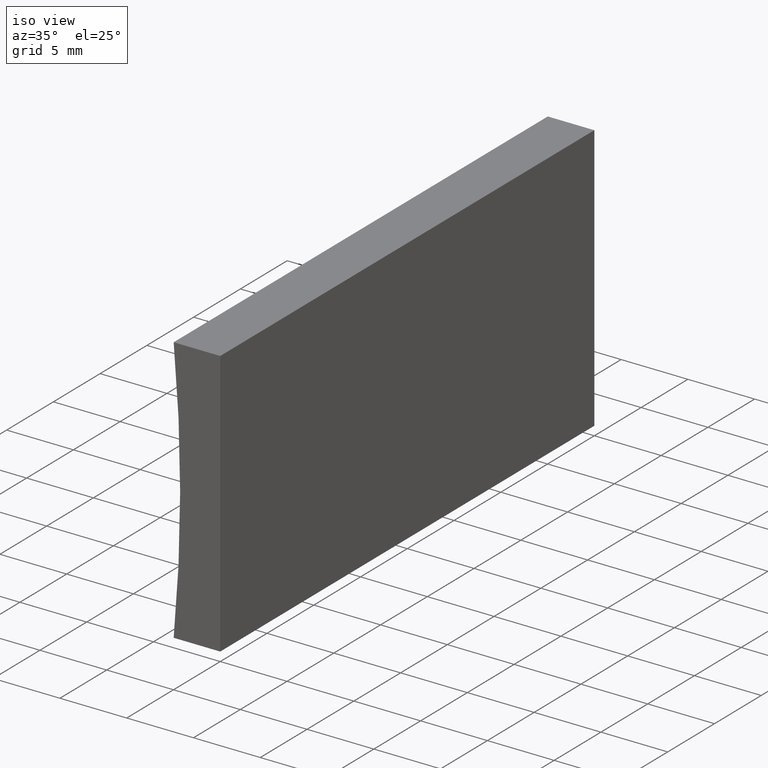
[diagram: clean part render]
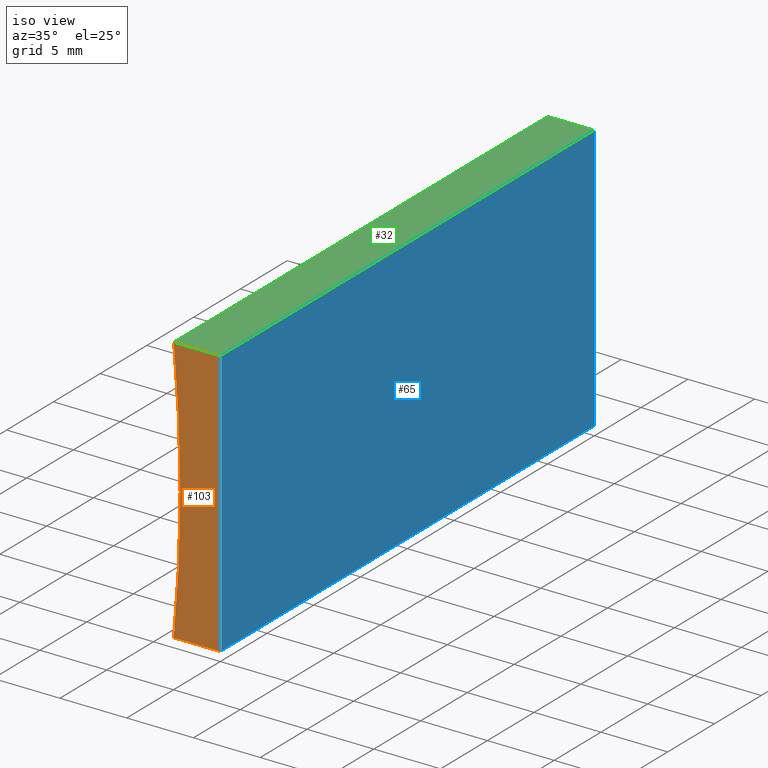
[diagram: same view with three faces highlighted in distinct colors, each labeled with its STEP entity id]
A machine part, iso view with three faces highlighted in distinct colors.
Their STEP definitions:

[orange] entity #103 — the highlighted planar face has unit normal (0, 1, 0).
#7 = VERTEX_POINT ( 'NONE', #56 ) ;
#8 = AXIS2_PLACEMENT_3D ( 'NONE', #128, #198, #110 ) ;
#19 = CIRCLE ( 'NONE', #8, 103.4000000000000200 ) ;
#34 = AXIS2_PLACEMENT_3D ( 'NONE', #134, #153, #162 ) ;
#38 = EDGE_LOOP ( 'NONE', ( #199, #99, #163, #61 ) ) ;
#48 = EDGE_CURVE ( 'NONE', #168, #7, #83, .T. ) ;
#56 = CARTESIAN_POINT ( 'NONE',  ( 1.224646799147353300E-015, 0.0000000000000000000, 20.00000000000000000 ) ) ;
#58 = VECTOR ( 'NONE', #195, 1000.000000000000000 ) ;
#61 = ORIENTED_EDGE ( 'NONE', *, *, #88, .F. ) ;
#69 = CARTESIAN_POINT ( 'NONE',  ( 1.224646799147353300E-015, 0.0000000000000000000, 20.00000000000000000 ) ) ;
#83 = LINE ( 'NONE', #69, #120 ) ;
#88 = EDGE_CURVE ( 'NONE', #97, #168, #19, .T. ) ;
#97 = VERTEX_POINT ( 'NONE', #158 ) ;
#99 = ORIENTED_EDGE ( 'NONE', *, *, #152, .F. ) ;
#103 = ADVANCED_FACE ( 'NONE', ( #150 ), #203, .F. ) ;
#108 = DIRECTION ( 'NONE',  ( -1.000000000000000000, 0.0000000000000000000, -9.956242759457456300E-016 ) ) ;
#110 = DIRECTION ( 'NONE',  ( 0.0000000000000000000, 0.0000000000000000000, 1.000000000000000000 ) ) ;
#114 = VECTOR ( 'NONE', #108, 1000.000000000000000 ) ;
#120 = VECTOR ( 'NONE', #142, 1000.000000000000000 ) ;
#121 = LINE ( 'NONE', #124, #114 ) ;
#124 = CARTESIAN_POINT ( 'NONE',  ( 0.0000000000000000000, 0.0000000000000000000, 0.0000000000000000000 ) ) ;
#125 = EDGE_CURVE ( 'NONE', #140, #97, #121, .T. ) ;
#128 = CARTESIAN_POINT ( 'NONE',  ( -106.4000000000000100, 0.0000000000000000000, 10.00000000000001600 ) ) ;
#129 = LINE ( 'NONE', #166, #58 ) ;
#130 = CARTESIAN_POINT ( 'NONE',  ( 0.0000000000000000000, 0.0000000000000000000, 0.0000000000000000000 ) ) ;
#134 = CARTESIAN_POINT ( 'NONE',  ( -106.4000000000000100, 0.0000000000000000000, 10.00000000000001600 ) ) ;
#140 = VERTEX_POINT ( 'NONE', #130 ) ;
#142 = DIRECTION ( 'NONE',  ( 1.000000000000000000, -0.0000000000000000000, -9.956242759457458300E-016 ) ) ;
#148 = CARTESIAN_POINT ( 'NONE',  ( -3.484695015755795200, 0.0000000000000000000, 20.00000000000000400 ) ) ;
#150 = FACE_OUTER_BOUND ( 'NONE', #38, .T. ) ;
#152 = EDGE_CURVE ( 'NONE', #7, #140, #129, .T. ) ;
#153 = DIRECTION ( 'NONE',  ( 0.0000000000000000000, 1.000000000000000000, 0.0000000000000000000 ) ) ;
#158 = CARTESIAN_POINT ( 'NONE',  ( -3.484695015755795200, 0.0000000000000000000, -1.214306433183765000E-014 ) ) ;
#162 = DIRECTION ( 'NONE',  ( 0.0000000000000000000, -0.0000000000000000000, 1.000000000000000000 ) ) ;
#163 = ORIENTED_EDGE ( 'NONE', *, *, #48, .F. ) ;
#166 = CARTESIAN_POINT ( 'NONE',  ( 0.0000000000000000000, 0.0000000000000000000, 0.0000000000000000000 ) ) ;
#168 = VERTEX_POINT ( 'NONE', #148 ) ;
#195 = DIRECTION ( 'NONE',  ( -6.123233995736766000E-017, -0.0000000000000000000, -1.000000000000000000 ) ) ;
#198 = DIRECTION ( 'NONE',  ( -0.0000000000000000000, -1.000000000000000000, -0.0000000000000000000 ) ) ;
#199 = ORIENTED_EDGE ( 'NONE', *, *, #125, .F. ) ;
#203 = PLANE ( 'NONE',  #34 ) ;

[blue] entity #65 — the highlighted planar face has unit normal (-1, 0, 0).
#7 = VERTEX_POINT ( 'NONE', #56 ) ;
#16 = LINE ( 'NONE', #173, #117 ) ;
#21 = ORIENTED_EDGE ( 'NONE', *, *, #107, .F. ) ;
#31 = DIRECTION ( 'NONE',  ( -6.123233995736766000E-017, -0.0000000000000000000, -1.000000000000000000 ) ) ;
#33 = PLANE ( 'NONE',  #82 ) ;
#42 = ORIENTED_EDGE ( 'NONE', *, *, #111, .T. ) ;
#45 = DIRECTION ( 'NONE',  ( -0.0000000000000000000, -1.000000000000000000, -0.0000000000000000000 ) ) ;
#53 = CARTESIAN_POINT ( 'NONE',  ( 0.0000000000000000000, 40.00000000000000000, 0.0000000000000000000 ) ) ;
#56 = CARTESIAN_POINT ( 'NONE',  ( 1.224646799147353300E-015, 0.0000000000000000000, 20.00000000000000000 ) ) ;
#58 = VECTOR ( 'NONE', #195, 1000.000000000000000 ) ;
#65 = ADVANCED_FACE ( 'NONE', ( #135 ), #33, .F. ) ;
#67 = ORIENTED_EDGE ( 'NONE', *, *, #171, .F. ) ;
#81 = LINE ( 'NONE', #204, #137 ) ;
#82 = AXIS2_PLACEMENT_3D ( 'NONE', #53, #187, #177 ) ;
#93 = CARTESIAN_POINT ( 'NONE',  ( 0.0000000000000000000, 40.00000000000000000, 0.0000000000000000000 ) ) ;
#95 = ORIENTED_EDGE ( 'NONE', *, *, #152, .T. ) ;
#106 = VERTEX_POINT ( 'NONE', #188 ) ;
#107 = EDGE_CURVE ( 'NONE', #122, #140, #16, .T. ) ;
#111 = EDGE_CURVE ( 'NONE', #106, #7, #81, .T. ) ;
#112 = CARTESIAN_POINT ( 'NONE',  ( 0.0000000000000000000, 40.00000000000000000, 0.0000000000000000000 ) ) ;
#117 = VECTOR ( 'NONE', #170, 1000.000000000000000 ) ;
#122 = VERTEX_POINT ( 'NONE', #112 ) ;
#129 = LINE ( 'NONE', #166, #58 ) ;
#130 = CARTESIAN_POINT ( 'NONE',  ( 0.0000000000000000000, 0.0000000000000000000, 0.0000000000000000000 ) ) ;
#135 = FACE_OUTER_BOUND ( 'NONE', #186, .T. ) ;
#137 = VECTOR ( 'NONE', #45, 1000.000000000000000 ) ;
#140 = VERTEX_POINT ( 'NONE', #130 ) ;
#152 = EDGE_CURVE ( 'NONE', #7, #140, #129, .T. ) ;
#160 = VECTOR ( 'NONE', #31, 1000.000000000000000 ) ;
#166 = CARTESIAN_POINT ( 'NONE',  ( 0.0000000000000000000, 0.0000000000000000000, 0.0000000000000000000 ) ) ;
#167 = LINE ( 'NONE', #93, #160 ) ;
#170 = DIRECTION ( 'NONE',  ( -0.0000000000000000000, -1.000000000000000000, -0.0000000000000000000 ) ) ;
#171 = EDGE_CURVE ( 'NONE', #106, #122, #167, .T. ) ;
#173 = CARTESIAN_POINT ( 'NONE',  ( 0.0000000000000000000, 40.00000000000000000, 0.0000000000000000000 ) ) ;
#177 = DIRECTION ( 'NONE',  ( 6.123233995736766000E-017, 0.0000000000000000000, 1.000000000000000000 ) ) ;
#186 = EDGE_LOOP ( 'NONE', ( #95, #21, #67, #42 ) ) ;
#187 = DIRECTION ( 'NONE',  ( -1.000000000000000000, 0.0000000000000000000, 6.123233995736766000E-017 ) ) ;
#188 = CARTESIAN_POINT ( 'NONE',  ( 1.224646799147353300E-015, 40.00000000000000000, 20.00000000000000000 ) ) ;
#195 = DIRECTION ( 'NONE',  ( -6.123233995736766000E-017, -0.0000000000000000000, -1.000000000000000000 ) ) ;
#204 = CARTESIAN_POINT ( 'NONE',  ( 1.224646799147353300E-015, 40.00000000000000000, 20.00000000000000000 ) ) ;

[green] entity #32 — the highlighted planar face has unit normal (-0, 0, -1).
#4 = EDGE_CURVE ( 'NONE', #102, #168, #181, .T. ) ;
#7 = VERTEX_POINT ( 'NONE', #56 ) ;
#26 = DIRECTION ( 'NONE',  ( -0.0000000000000000000, -1.000000000000000000, -0.0000000000000000000 ) ) ;
#29 = CARTESIAN_POINT ( 'NONE',  ( -3.484695015755795200, 40.00000000000000000, 20.00000000000000400 ) ) ;
#32 = ADVANCED_FACE ( 'NONE', ( #147 ), #189, .F. ) ;
#45 = DIRECTION ( 'NONE',  ( -0.0000000000000000000, -1.000000000000000000, -0.0000000000000000000 ) ) ;
#48 = EDGE_CURVE ( 'NONE', #168, #7, #83, .T. ) ;
#51 = CARTESIAN_POINT ( 'NONE',  ( -3.484695015755795200, 40.00000000000000000, 20.00000000000000400 ) ) ;
#56 = CARTESIAN_POINT ( 'NONE',  ( 1.224646799147353300E-015, 0.0000000000000000000, 20.00000000000000000 ) ) ;
#59 = DIRECTION ( 'NONE',  ( -9.956242759457458300E-016, 0.0000000000000000000, -1.000000000000000000 ) ) ;
#66 = EDGE_CURVE ( 'NONE', #102, #106, #85, .T. ) ;
#68 = ORIENTED_EDGE ( 'NONE', *, *, #48, .T. ) ;
#69 = CARTESIAN_POINT ( 'NONE',  ( 1.224646799147353300E-015, 0.0000000000000000000, 20.00000000000000000 ) ) ;
#74 = CARTESIAN_POINT ( 'NONE',  ( 1.224646799147353300E-015, 40.00000000000000000, 20.00000000000000000 ) ) ;
#78 = CARTESIAN_POINT ( 'NONE',  ( 1.224646799147353300E-015, 40.00000000000000000, 20.00000000000000000 ) ) ;
#79 = VECTOR ( 'NONE', #26, 1000.000000000000000 ) ;
#81 = LINE ( 'NONE', #204, #137 ) ;
#83 = LINE ( 'NONE', #69, #120 ) ;
#85 = LINE ( 'NONE', #74, #165 ) ;
#102 = VERTEX_POINT ( 'NONE', #51 ) ;
#106 = VERTEX_POINT ( 'NONE', #188 ) ;
#111 = EDGE_CURVE ( 'NONE', #106, #7, #81, .T. ) ;
#113 = ORIENTED_EDGE ( 'NONE', *, *, #4, .T. ) ;
#120 = VECTOR ( 'NONE', #142, 1000.000000000000000 ) ;
#127 = EDGE_LOOP ( 'NONE', ( #68, #132, #169, #113 ) ) ;
#132 = ORIENTED_EDGE ( 'NONE', *, *, #111, .F. ) ;
#137 = VECTOR ( 'NONE', #45, 1000.000000000000000 ) ;
#142 = DIRECTION ( 'NONE',  ( 1.000000000000000000, -0.0000000000000000000, -9.956242759457458300E-016 ) ) ;
#145 = DIRECTION ( 'NONE',  ( -1.000000000000000000, 0.0000000000000000000, 9.956242759457458300E-016 ) ) ;
#147 = FACE_OUTER_BOUND ( 'NONE', #127, .T. ) ;
#148 = CARTESIAN_POINT ( 'NONE',  ( -3.484695015755795200, 0.0000000000000000000, 20.00000000000000400 ) ) ;
#165 = VECTOR ( 'NONE', #182, 1000.000000000000000 ) ;
#168 = VERTEX_POINT ( 'NONE', #148 ) ;
#169 = ORIENTED_EDGE ( 'NONE', *, *, #66, .F. ) ;
#181 = LINE ( 'NONE', #29, #79 ) ;
#182 = DIRECTION ( 'NONE',  ( 1.000000000000000000, -0.0000000000000000000, -9.956242759457458300E-016 ) ) ;
#188 = CARTESIAN_POINT ( 'NONE',  ( 1.224646799147353300E-015, 40.00000000000000000, 20.00000000000000000 ) ) ;
#189 = PLANE ( 'NONE',  #200 ) ;
#200 = AXIS2_PLACEMENT_3D ( 'NONE', #78, #59, #145 ) ;
#204 = CARTESIAN_POINT ( 'NONE',  ( 1.224646799147353300E-015, 40.00000000000000000, 20.00000000000000000 ) ) ;